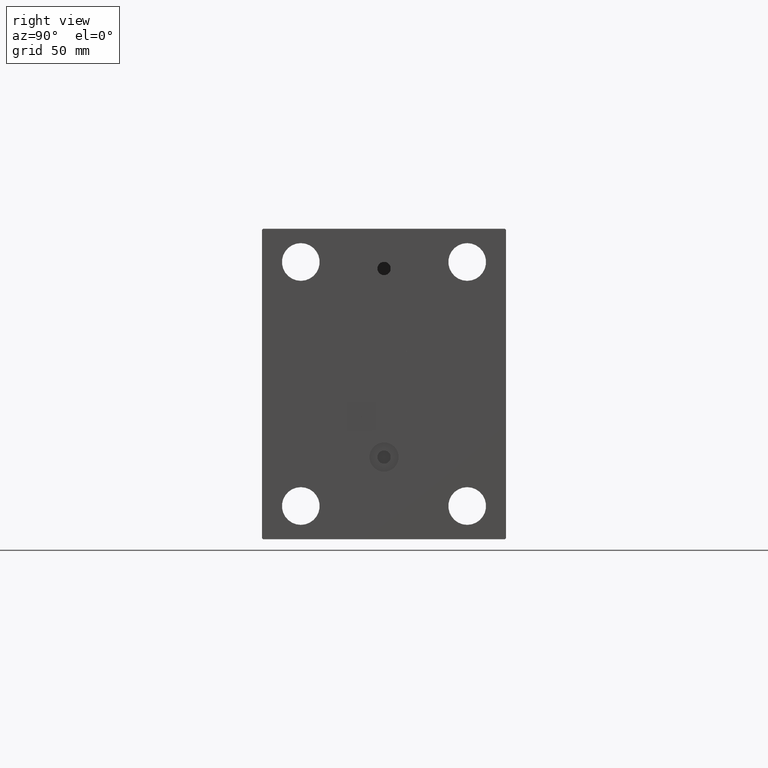
[diagram: clean part render]
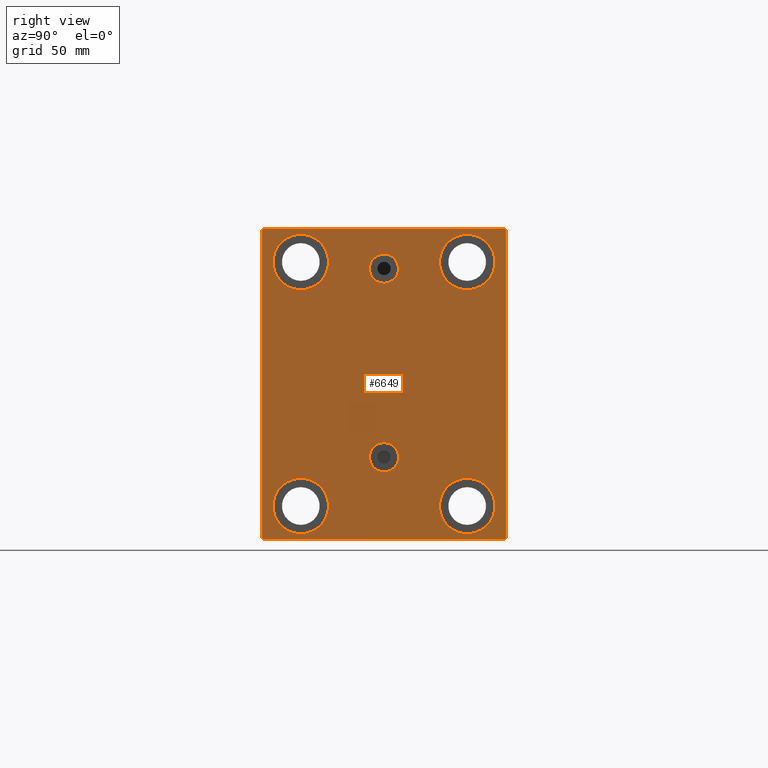
[diagram: same view with one face highlighted and labeled with its STEP entity id]
A machine part, right view. The second image highlights one B-rep face of the part: STEP entity #6649.
In plain terms, the highlighted planar face has unit normal (1, 0, 0).
Its self-contained STEP definition (entity closure, byte-faithful):
#30 = AXIS2_PLACEMENT_3D ( 'NONE', #8623, #19484, #5312 ) ;
#222 = ORIENTED_EDGE ( 'NONE', *, *, #33904, .T. ) ;
#394 = CIRCLE ( 'NONE', #41125, 12.49999999999999645 ) ;
#437 = ORIENTED_EDGE ( 'NONE', *, *, #14536, .T. ) ;
#504 = DIRECTION ( 'NONE',  ( -1.000000000000000000, -0.000000000000000000, -0.000000000000000000 ) ) ;
#518 = ORIENTED_EDGE ( 'NONE', *, *, #25113, .F. ) ;
#779 = AXIS2_PLACEMENT_3D ( 'NONE', #32977, #40538, #32739 ) ;
#866 = VERTEX_POINT ( 'NONE', #37378 ) ;
#1013 = VERTEX_POINT ( 'NONE', #41505 ) ;
#1557 = LINE ( 'NONE', #5101, #39332 ) ;
#2019 = CARTESIAN_POINT ( 'NONE',  ( 153.0000000000000000, -7.970046508789298136E-15, 58.58000000000000540 ) ) ;
#2351 = VERTEX_POINT ( 'NONE', #39070 ) ;
#2440 = DIRECTION ( 'NONE',  ( 1.000000000000000000, 0.000000000000000000, 0.000000000000000000 ) ) ;
#2492 = CARTESIAN_POINT ( 'NONE',  ( 153.0000000000000000, 37.49999999999997868, -54.99999999999999289 ) ) ;
#2610 = AXIS2_PLACEMENT_3D ( 'NONE', #32842, #504, #14899 ) ;
#3046 = ORIENTED_EDGE ( 'NONE', *, *, #37224, .T. ) ;
#3158 = CARTESIAN_POINT ( 'NONE',  ( 153.0000000000000000, -37.50000000000002132, -42.49999999999999289 ) ) ;
#3913 = CARTESIAN_POINT ( 'NONE',  ( 153.0000000000000000, 4.847152031025224453E-15, -26.41999999999999815 ) ) ;
#4284 = CARTESIAN_POINT ( 'NONE',  ( 153.0000000000000000, 37.50000000000000711, 42.50000000000000711 ) ) ;
#4531 = EDGE_CURVE ( 'NONE', #866, #6267, #29478, .T. ) ;
#4617 = VERTEX_POINT ( 'NONE', #39635 ) ;
#4628 = ORIENTED_EDGE ( 'NONE', *, *, #39768, .T. ) ;
#4775 = CIRCLE ( 'NONE', #16847, 12.49999999999999645 ) ;
#5101 = CARTESIAN_POINT ( 'NONE',  ( 153.0000000000000000, -62.25000000000000000, 62.25000000000000000 ) ) ;
#5312 = DIRECTION ( 'NONE',  ( 0.000000000000000000, 0.000000000000000000, 1.000000000000000000 ) ) ;
#5521 = FACE_BOUND ( 'NONE', #39210, .T. ) ;
#5558 = CARTESIAN_POINT ( 'NONE',  ( 153.0000000000000000, -62.24999999999927525, -62.25000000000100897 ) ) ;
#5597 = CARTESIAN_POINT ( 'NONE',  ( 153.0000000000000000, -37.50000000000000711, 67.50000000000000000 ) ) ;
#5736 = LINE ( 'NONE', #30989, #25218 ) ;
#5741 = CARTESIAN_POINT ( 'NONE',  ( 153.0000000000000000, 4.041334437186266200E-15, -33.00000000000000000 ) ) ;
#5942 = CIRCLE ( 'NONE', #45888, 12.49999999999999645 ) ;
#6081 = CIRCLE ( 'NONE', #779, 12.49999999999999645 ) ;
#6108 = EDGE_LOOP ( 'NONE', ( #22772, #12075 ) ) ;
#6267 = VERTEX_POINT ( 'NONE', #13572 ) ;
#6649 = ADVANCED_FACE ( 'NONE', ( #41414, #20154, #9057, #37855, #5521, #9290, #19923 ), #30773, .T. ) ;
#6732 = CARTESIAN_POINT ( 'NONE',  ( 153.0000000000000000, 37.49999999999997868, -67.49999999999998579 ) ) ;
#6976 = CARTESIAN_POINT ( 'NONE',  ( 153.0000000000000000, -37.50000000000002132, -54.99999999999999289 ) ) ;
#7736 = ORIENTED_EDGE ( 'NONE', *, *, #38807, .F. ) ;
#7924 = DIRECTION ( 'NONE',  ( 0.000000000000000000, 0.000000000000000000, 1.000000000000000000 ) ) ;
#8056 = CARTESIAN_POINT ( 'NONE',  ( 153.0000000000000000, -55.00000000000000711, -70.00000000000002842 ) ) ;
#8184 = CARTESIAN_POINT ( 'NONE',  ( 153.0000000000000000, 37.50000000000000711, 55.00000000000000711 ) ) ;
#8621 = CARTESIAN_POINT ( 'NONE',  ( 153.0000000000000000, 54.99999999999999289, 69.50000000000000000 ) ) ;
#8623 = CARTESIAN_POINT ( 'NONE',  ( 153.0000000000000000, 37.49999999999997868, -54.99999999999999289 ) ) ;
#8905 = ORIENTED_EDGE ( 'NONE', *, *, #32602, .F. ) ;
#9057 = FACE_BOUND ( 'NONE', #46414, .T. ) ;
#9142 = DIRECTION ( 'NONE',  ( 1.000000000000000000, 0.000000000000000000, -0.000000000000000000 ) ) ;
#9290 = FACE_BOUND ( 'NONE', #24266, .T. ) ;
#9657 = AXIS2_PLACEMENT_3D ( 'NONE', #16772, #38487, #30235 ) ;
#10226 = EDGE_CURVE ( 'NONE', #15762, #17428, #4775, .T. ) ;
#10815 = DIRECTION ( 'NONE',  ( -0.000000000000000000, 0.7071067811865474617, 0.7071067811865474617 ) ) ;
#11247 = EDGE_CURVE ( 'NONE', #29398, #4617, #40570, .T. ) ;
#11844 = EDGE_CURVE ( 'NONE', #14249, #866, #40401, .T. ) ;
#12075 = ORIENTED_EDGE ( 'NONE', *, *, #46740, .T. ) ;
#12312 = EDGE_CURVE ( 'NONE', #41024, #17143, #22201, .T. ) ;
#12344 = DIRECTION ( 'NONE',  ( 0.000000000000000000, 0.000000000000000000, -1.000000000000000000 ) ) ;
#13572 = CARTESIAN_POINT ( 'NONE',  ( 153.0000000000000000, 55.00000000000002132, -69.50000000000000000 ) ) ;
#13894 = DIRECTION ( 'NONE',  ( 0.000000000000000000, -1.982541115402065110E-16, 1.000000000000000000 ) ) ;
#14249 = VERTEX_POINT ( 'NONE', #39128 ) ;
#14406 = DIRECTION ( 'NONE',  ( -1.000000000000000000, -0.000000000000000000, -0.000000000000000000 ) ) ;
#14536 = EDGE_CURVE ( 'NONE', #19148, #39866, #394, .T. ) ;
#14899 = DIRECTION ( 'NONE',  ( 0.000000000000000000, 0.000000000000000000, 1.000000000000000000 ) ) ;
#15260 = DIRECTION ( 'NONE',  ( 0.000000000000000000, 0.000000000000000000, 1.000000000000000000 ) ) ;
#15390 = EDGE_LOOP ( 'NONE', ( #518, #7736 ) ) ;
#15592 = ORIENTED_EDGE ( 'NONE', *, *, #27485, .F. ) ;
#15762 = VERTEX_POINT ( 'NONE', #3158 ) ;
#15959 = CIRCLE ( 'NONE', #28012, 6.580000000000002736 ) ;
#16359 = CARTESIAN_POINT ( 'NONE',  ( 153.0000000000000000, 37.50000000000000711, 55.00000000000000711 ) ) ;
#16423 = CARTESIAN_POINT ( 'NONE',  ( 153.0000000000000000, 37.49999999999997868, -42.49999999999999289 ) ) ;
#16463 = CARTESIAN_POINT ( 'NONE',  ( 153.0000000000000000, 4.041334437186266200E-15, -33.00000000000000000 ) ) ;
#16772 = CARTESIAN_POINT ( 'NONE',  ( 153.0000000000000000, -8.775864102628257178E-15, 52.00000000000000711 ) ) ;
#16847 = AXIS2_PLACEMENT_3D ( 'NONE', #6976, #32008, #7924 ) ;
#16929 = DIRECTION ( 'NONE',  ( 0.000000000000000000, 0.000000000000000000, 1.000000000000000000 ) ) ;
#17143 = VERTEX_POINT ( 'NONE', #4284 ) ;
#17204 = EDGE_LOOP ( 'NONE', ( #21624, #4628, #24900, #34837, #28029, #18164, #222, #35778 ) ) ;
#17428 = VERTEX_POINT ( 'NONE', #37736 ) ;
#18164 = ORIENTED_EDGE ( 'NONE', *, *, #4531, .T. ) ;
#18381 = VECTOR ( 'NONE', #22633, 1000.000000000000000 ) ;
#19148 = VERTEX_POINT ( 'NONE', #6732 ) ;
#19484 = DIRECTION ( 'NONE',  ( -1.000000000000000000, -0.000000000000000000, -0.000000000000000000 ) ) ;
#19923 = FACE_OUTER_BOUND ( 'NONE', #17204, .T. ) ;
#19964 = DIRECTION ( 'NONE',  ( -0.000000000000000000, 0.7071067811865574537, -0.7071067811865376918 ) ) ;
#20154 = FACE_BOUND ( 'NONE', #26043, .T. ) ;
#20342 = CARTESIAN_POINT ( 'NONE',  ( 153.0000000000000000, 62.24999999999999289, 62.24999999999999289 ) ) ;
#21434 = AXIS2_PLACEMENT_3D ( 'NONE', #8184, #33195, #15260 ) ;
#21624 = ORIENTED_EDGE ( 'NONE', *, *, #11247, .T. ) ;
#21959 = VECTOR ( 'NONE', #10815, 1000.000000000000114 ) ;
#22201 = CIRCLE ( 'NONE', #21434, 12.49999999999999645 ) ;
#22633 = DIRECTION ( 'NONE',  ( 0.000000000000000000, -1.000000000000000000, -1.261617073437677999E-16 ) ) ;
#22671 = AXIS2_PLACEMENT_3D ( 'NONE', #5741, #34073, #23920 ) ;
#22772 = ORIENTED_EDGE ( 'NONE', *, *, #29739, .T. ) ;
#22801 = DIRECTION ( 'NONE',  ( 1.000000000000000000, 0.000000000000000000, 0.000000000000000000 ) ) ;
#23681 = DIRECTION ( 'NONE',  ( -1.000000000000000000, -0.000000000000000000, -0.000000000000000000 ) ) ;
#23920 = DIRECTION ( 'NONE',  ( 0.000000000000000000, 0.000000000000000000, 1.000000000000000000 ) ) ;
#24019 = AXIS2_PLACEMENT_3D ( 'NONE', #16463, #9142, #16929 ) ;
#24156 = CARTESIAN_POINT ( 'NONE',  ( 153.0000000000000000, 37.50000000000000711, 67.50000000000000000 ) ) ;
#24266 = EDGE_LOOP ( 'NONE', ( #45600, #28408 ) ) ;
#24443 = DIRECTION ( 'NONE',  ( -1.000000000000000000, -0.000000000000000000, -0.000000000000000000 ) ) ;
#24762 = CARTESIAN_POINT ( 'NONE',  ( 153.0000000000000000, 55.00000000000002132, -70.00000000000000000 ) ) ;
#24900 = ORIENTED_EDGE ( 'NONE', *, *, #46540, .T. ) ;
#25113 = EDGE_CURVE ( 'NONE', #2351, #27886, #42814, .T. ) ;
#25218 = VECTOR ( 'NONE', #12344, 1000.000000000000000 ) ;
#25288 = CARTESIAN_POINT ( 'NONE',  ( 153.0000000000000000, -37.50000000000000711, 55.00000000000000711 ) ) ;
#25873 = CARTESIAN_POINT ( 'NONE',  ( 153.0000000000000000, -8.775864102628257178E-15, 52.00000000000000711 ) ) ;
#26043 = EDGE_LOOP ( 'NONE', ( #15592, #8905 ) ) ;
#26298 = EDGE_CURVE ( 'NONE', #27063, #29398, #45140, .T. ) ;
#26409 = CARTESIAN_POINT ( 'NONE',  ( 153.0000000000000000, 54.99999999999999289, 70.00000000000000000 ) ) ;
#27063 = VERTEX_POINT ( 'NONE', #8621 ) ;
#27307 = AXIS2_PLACEMENT_3D ( 'NONE', #45182, #2440, #34545 ) ;
#27485 = EDGE_CURVE ( 'NONE', #37005, #41742, #36062, .T. ) ;
#27886 = VERTEX_POINT ( 'NONE', #2019 ) ;
#28012 = AXIS2_PLACEMENT_3D ( 'NONE', #25873, #22801, #40979 ) ;
#28029 = ORIENTED_EDGE ( 'NONE', *, *, #11844, .T. ) ;
#28093 = EDGE_CURVE ( 'NONE', #17143, #41024, #5942, .T. ) ;
#28276 = VERTEX_POINT ( 'NONE', #5597 ) ;
#28297 = LINE ( 'NONE', #24762, #42174 ) ;
#28408 = ORIENTED_EDGE ( 'NONE', *, *, #10226, .T. ) ;
#28932 = CARTESIAN_POINT ( 'NONE',  ( 153.0000000000000000, 4.041334437186266200E-15, -39.58000000000000540 ) ) ;
#29398 = VERTEX_POINT ( 'NONE', #38346 ) ;
#29478 = LINE ( 'NONE', #46485, #21959 ) ;
#29739 = EDGE_CURVE ( 'NONE', #35944, #28276, #36878, .T. ) ;
#30235 = DIRECTION ( 'NONE',  ( 0.000000000000000000, 0.000000000000000000, -1.000000000000000000 ) ) ;
#30518 = DIRECTION ( 'NONE',  ( 0.000000000000000000, 0.000000000000000000, 1.000000000000000000 ) ) ;
#30773 = PLANE ( 'NONE',  #27307 ) ;
#30989 = CARTESIAN_POINT ( 'NONE',  ( 153.0000000000000000, -55.00000000000000711, 69.99999999999998579 ) ) ;
#31294 = EDGE_CURVE ( 'NONE', #1013, #14249, #41676, .T. ) ;
#32007 = CIRCLE ( 'NONE', #2610, 12.49999999999999645 ) ;
#32008 = DIRECTION ( 'NONE',  ( -1.000000000000000000, -0.000000000000000000, -0.000000000000000000 ) ) ;
#32130 = DIRECTION ( 'NONE',  ( 0.000000000000000000, 0.000000000000000000, 1.000000000000000000 ) ) ;
#32602 = EDGE_CURVE ( 'NONE', #41742, #37005, #46677, .T. ) ;
#32739 = DIRECTION ( 'NONE',  ( 0.000000000000000000, 0.000000000000000000, 1.000000000000000000 ) ) ;
#32842 = CARTESIAN_POINT ( 'NONE',  ( 153.0000000000000000, -37.50000000000000711, 55.00000000000000711 ) ) ;
#32977 = CARTESIAN_POINT ( 'NONE',  ( 153.0000000000000000, -37.50000000000002132, -54.99999999999999289 ) ) ;
#33195 = DIRECTION ( 'NONE',  ( -1.000000000000000000, -0.000000000000000000, -0.000000000000000000 ) ) ;
#33431 = EDGE_CURVE ( 'NONE', #17428, #15762, #6081, .T. ) ;
#33551 = DIRECTION ( 'NONE',  ( 0.000000000000000000, 1.000000000000000000, 2.523234146875355012E-16 ) ) ;
#33618 = CARTESIAN_POINT ( 'NONE',  ( 153.0000000000000000, -37.50000000000000711, 42.50000000000000711 ) ) ;
#33857 = AXIS2_PLACEMENT_3D ( 'NONE', #25288, #14406, #32130 ) ;
#33894 = DIRECTION ( 'NONE',  ( 0.000000000000000000, -0.7071067811865474617, -0.7071067811865474617 ) ) ;
#33904 = EDGE_CURVE ( 'NONE', #6267, #27063, #28297, .T. ) ;
#34073 = DIRECTION ( 'NONE',  ( 1.000000000000000000, 0.000000000000000000, -0.000000000000000000 ) ) ;
#34524 = VECTOR ( 'NONE', #34736, 1000.000000000000114 ) ;
#34545 = DIRECTION ( 'NONE',  ( 0.000000000000000000, 0.000000000000000000, -1.000000000000000000 ) ) ;
#34736 = DIRECTION ( 'NONE',  ( -0.000000000000000000, -0.7071067811865474617, 0.7071067811865474617 ) ) ;
#34837 = ORIENTED_EDGE ( 'NONE', *, *, #31294, .T. ) ;
#35778 = ORIENTED_EDGE ( 'NONE', *, *, #26298, .T. ) ;
#35944 = VERTEX_POINT ( 'NONE', #33618 ) ;
#36062 = CIRCLE ( 'NONE', #24019, 6.580000000000002736 ) ;
#36878 = CIRCLE ( 'NONE', #33857, 12.49999999999999645 ) ;
#37005 = VERTEX_POINT ( 'NONE', #28932 ) ;
#37224 = EDGE_CURVE ( 'NONE', #39866, #19148, #40768, .T. ) ;
#37378 = CARTESIAN_POINT ( 'NONE',  ( 153.0000000000000000, 54.50000000000002132, -70.00000000000000000 ) ) ;
#37736 = CARTESIAN_POINT ( 'NONE',  ( 153.0000000000000000, -37.50000000000002132, -67.49999999999998579 ) ) ;
#37855 = FACE_BOUND ( 'NONE', #6108, .T. ) ;
#38346 = CARTESIAN_POINT ( 'NONE',  ( 153.0000000000000000, 54.49999999999999289, 70.00000000000000000 ) ) ;
#38487 = DIRECTION ( 'NONE',  ( 1.000000000000000000, 0.000000000000000000, 0.000000000000000000 ) ) ;
#38807 = EDGE_CURVE ( 'NONE', #27886, #2351, #15959, .T. ) ;
#39070 = CARTESIAN_POINT ( 'NONE',  ( 153.0000000000000000, -8.775864102628257178E-15, 45.42000000000000171 ) ) ;
#39128 = CARTESIAN_POINT ( 'NONE',  ( 153.0000000000000000, -54.50000000000003553, -70.00000000000002842 ) ) ;
#39210 = EDGE_LOOP ( 'NONE', ( #43871, #46342 ) ) ;
#39332 = VECTOR ( 'NONE', #33894, 1000.000000000000114 ) ;
#39444 = CARTESIAN_POINT ( 'NONE',  ( 153.0000000000000000, -55.00000000000000711, 69.49999999999998579 ) ) ;
#39635 = CARTESIAN_POINT ( 'NONE',  ( 153.0000000000000000, -54.50000000000000711, 69.99999999999998579 ) ) ;
#39768 = EDGE_CURVE ( 'NONE', #4617, #44376, #1557, .T. ) ;
#39866 = VERTEX_POINT ( 'NONE', #16423 ) ;
#40401 = LINE ( 'NONE', #8056, #44090 ) ;
#40538 = DIRECTION ( 'NONE',  ( -1.000000000000000000, -0.000000000000000000, -0.000000000000000000 ) ) ;
#40570 = LINE ( 'NONE', #26409, #18381 ) ;
#40768 = CIRCLE ( 'NONE', #30, 12.49999999999999645 ) ;
#40979 = DIRECTION ( 'NONE',  ( 0.000000000000000000, 0.000000000000000000, -1.000000000000000000 ) ) ;
#41024 = VERTEX_POINT ( 'NONE', #24156 ) ;
#41125 = AXIS2_PLACEMENT_3D ( 'NONE', #2492, #24443, #45702 ) ;
#41414 = FACE_BOUND ( 'NONE', #15390, .T. ) ;
#41505 = CARTESIAN_POINT ( 'NONE',  ( 153.0000000000000000, -55.00000000000000711, -69.50000000000007105 ) ) ;
#41676 = LINE ( 'NONE', #5558, #42942 ) ;
#41742 = VERTEX_POINT ( 'NONE', #3913 ) ;
#42174 = VECTOR ( 'NONE', #13894, 1000.000000000000000 ) ;
#42814 = CIRCLE ( 'NONE', #9657, 6.580000000000002736 ) ;
#42942 = VECTOR ( 'NONE', #19964, 999.9999999999998863 ) ;
#43871 = ORIENTED_EDGE ( 'NONE', *, *, #28093, .T. ) ;
#44090 = VECTOR ( 'NONE', #33551, 1000.000000000000000 ) ;
#44376 = VERTEX_POINT ( 'NONE', #39444 ) ;
#45140 = LINE ( 'NONE', #20342, #34524 ) ;
#45182 = CARTESIAN_POINT ( 'NONE',  ( 153.0000000000000000, 0.000000000000000000, 0.000000000000000000 ) ) ;
#45600 = ORIENTED_EDGE ( 'NONE', *, *, #33431, .T. ) ;
#45702 = DIRECTION ( 'NONE',  ( 0.000000000000000000, 0.000000000000000000, 1.000000000000000000 ) ) ;
#45888 = AXIS2_PLACEMENT_3D ( 'NONE', #16359, #23681, #30518 ) ;
#46342 = ORIENTED_EDGE ( 'NONE', *, *, #12312, .T. ) ;
#46414 = EDGE_LOOP ( 'NONE', ( #437, #3046 ) ) ;
#46485 = CARTESIAN_POINT ( 'NONE',  ( 153.0000000000000000, 62.25000000000000711, -62.25000000000000711 ) ) ;
#46540 = EDGE_CURVE ( 'NONE', #44376, #1013, #5736, .T. ) ;
#46677 = CIRCLE ( 'NONE', #22671, 6.580000000000002736 ) ;
#46740 = EDGE_CURVE ( 'NONE', #28276, #35944, #32007, .T. ) ;